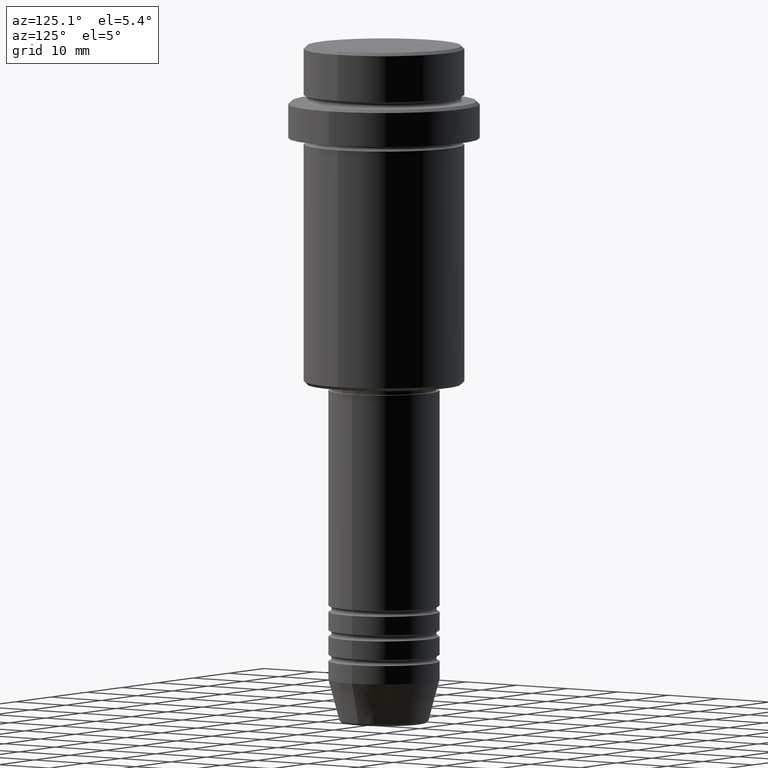
[diagram: clean part render]
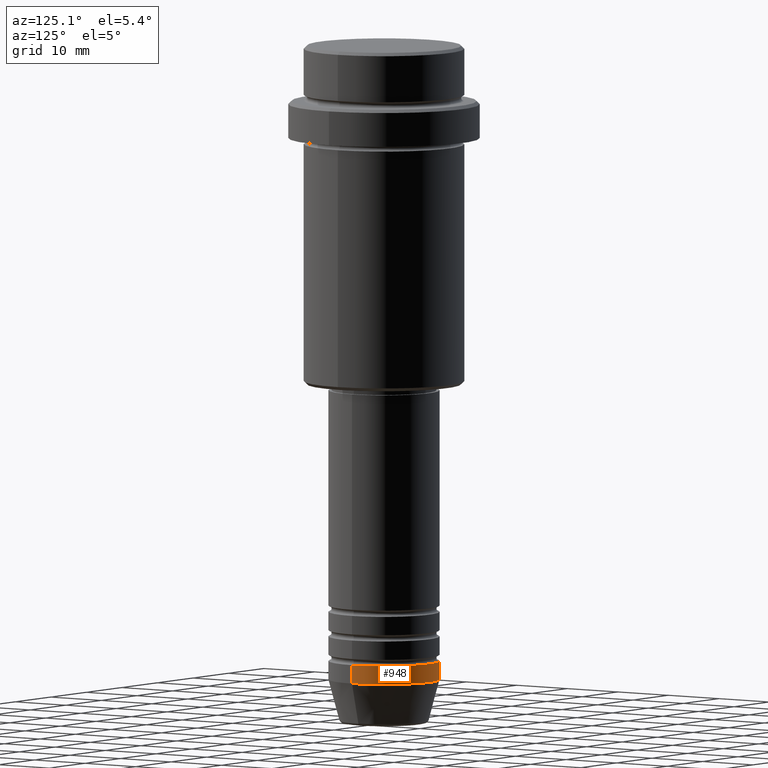
[diagram: same view with one face highlighted and labeled with its STEP entity id]
A machine part, auxiliary view. The second image highlights one B-rep face of the part: STEP entity #948.
In plain terms, the highlighted cylindrical surface (partial cylindrical patch) has radius 9 mm, axis along (-0, -0, 1).
Its self-contained STEP definition (entity closure, byte-faithful):
#15 = FACE_OUTER_BOUND ( 'NONE', #467, .T. ) ;
#18 = DIRECTION ( 'NONE',  ( 1.000000000000000000, 0.000000000000000000, 0.000000000000000000 ) ) ;
#21 = DIRECTION ( 'NONE',  ( -0.000000000000000000, -0.000000000000000000, 1.000000000000000000 ) ) ;
#83 = EDGE_CURVE ( 'NONE', #559, #416, #348, .T. ) ;
#120 = AXIS2_PLACEMENT_3D ( 'NONE', #1370, #832, #1037 ) ;
#127 = DIRECTION ( 'NONE',  ( -0.000000000000000000, -0.000000000000000000, 1.000000000000000000 ) ) ;
#131 = CARTESIAN_POINT ( 'NONE',  ( 0.000000000000000000, 0.000000000000000000, 0.000000000000000000 ) ) ;
#144 = CARTESIAN_POINT ( 'NONE',  ( 0.000000000000000000, 0.000000000000000000, -100.0000000000000000 ) ) ;
#275 = VECTOR ( 'NONE', #356, 1000.000000000000000 ) ;
#316 = ORIENTED_EDGE ( 'NONE', *, *, #574, .F. ) ;
#338 = LINE ( 'NONE', #910, #275 ) ;
#348 = LINE ( 'NONE', #469, #617 ) ;
#356 = DIRECTION ( 'NONE',  ( -0.000000000000000000, -0.000000000000000000, 1.000000000000000000 ) ) ;
#363 = CIRCLE ( 'NONE', #120, 9.000000000000000000 ) ;
#416 = VERTEX_POINT ( 'NONE', #743 ) ;
#467 = EDGE_LOOP ( 'NONE', ( #1036, #1345, #680, #316 ) ) ;
#469 = CARTESIAN_POINT ( 'NONE',  ( -9.000000000000000000, 1.102182119232617714E-15, 0.000000000000000000 ) ) ;
#559 = VERTEX_POINT ( 'NONE', #1012 ) ;
#573 = CIRCLE ( 'NONE', #1351, 9.000000000000000000 ) ;
#574 = EDGE_CURVE ( 'NONE', #794, #1201, #338, .T. ) ;
#579 = DIRECTION ( 'NONE',  ( -0.000000000000000000, -0.000000000000000000, 1.000000000000000000 ) ) ;
#617 = VECTOR ( 'NONE', #21, 1000.000000000000000 ) ;
#672 = CYLINDRICAL_SURFACE ( 'NONE', #1034, 9.000000000000000000 ) ;
#680 = ORIENTED_EDGE ( 'NONE', *, *, #980, .F. ) ;
#681 = EDGE_CURVE ( 'NONE', #794, #559, #363, .T. ) ;
#743 = CARTESIAN_POINT ( 'NONE',  ( -9.000000000000000000, 1.102182119232617714E-15, -100.0000000000000000 ) ) ;
#794 = VERTEX_POINT ( 'NONE', #978 ) ;
#832 = DIRECTION ( 'NONE',  ( -0.000000000000000000, -0.000000000000000000, 1.000000000000000000 ) ) ;
#851 = CARTESIAN_POINT ( 'NONE',  ( 9.000000000000000000, 0.000000000000000000, -100.0000000000000000 ) ) ;
#903 = DIRECTION ( 'NONE',  ( 1.000000000000000000, 0.000000000000000000, 0.000000000000000000 ) ) ;
#910 = CARTESIAN_POINT ( 'NONE',  ( 9.000000000000000000, 0.000000000000000000, 0.000000000000000000 ) ) ;
#948 = ADVANCED_FACE ( 'NONE', ( #15 ), #672, .T. ) ;
#978 = CARTESIAN_POINT ( 'NONE',  ( 9.000000000000000000, 0.000000000000000000, -103.0000000000000142 ) ) ;
#980 = EDGE_CURVE ( 'NONE', #1201, #416, #573, .T. ) ;
#1012 = CARTESIAN_POINT ( 'NONE',  ( -9.000000000000000000, 1.102182119232617714E-15, -103.0000000000000142 ) ) ;
#1034 = AXIS2_PLACEMENT_3D ( 'NONE', #131, #127, #18 ) ;
#1036 = ORIENTED_EDGE ( 'NONE', *, *, #681, .T. ) ;
#1037 = DIRECTION ( 'NONE',  ( 1.000000000000000000, 0.000000000000000000, 0.000000000000000000 ) ) ;
#1201 = VERTEX_POINT ( 'NONE', #851 ) ;
#1345 = ORIENTED_EDGE ( 'NONE', *, *, #83, .T. ) ;
#1351 = AXIS2_PLACEMENT_3D ( 'NONE', #144, #579, #903 ) ;
#1370 = CARTESIAN_POINT ( 'NONE',  ( 0.000000000000000000, 0.000000000000000000, -103.0000000000000142 ) ) ;